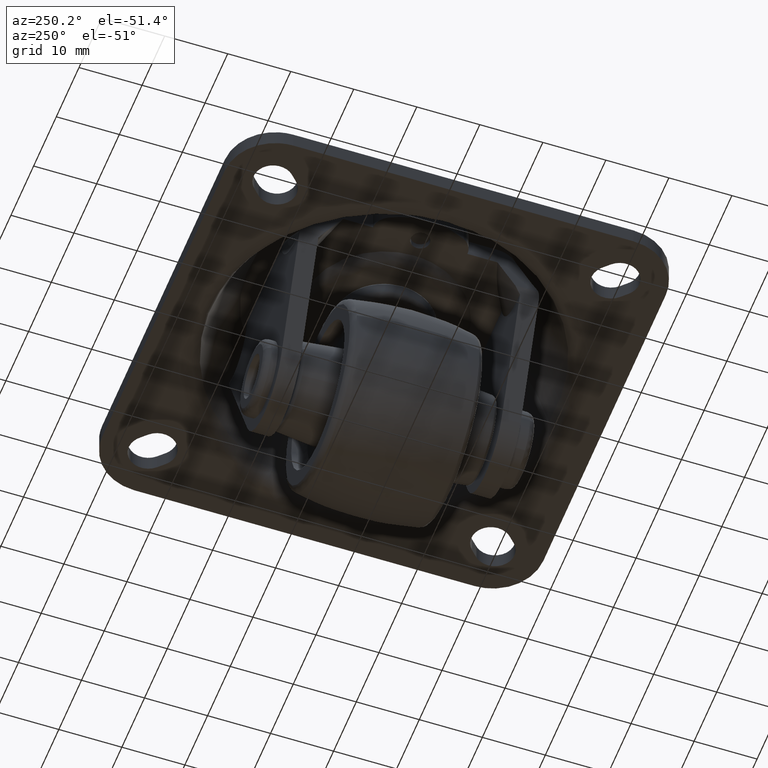
[diagram: clean part render]
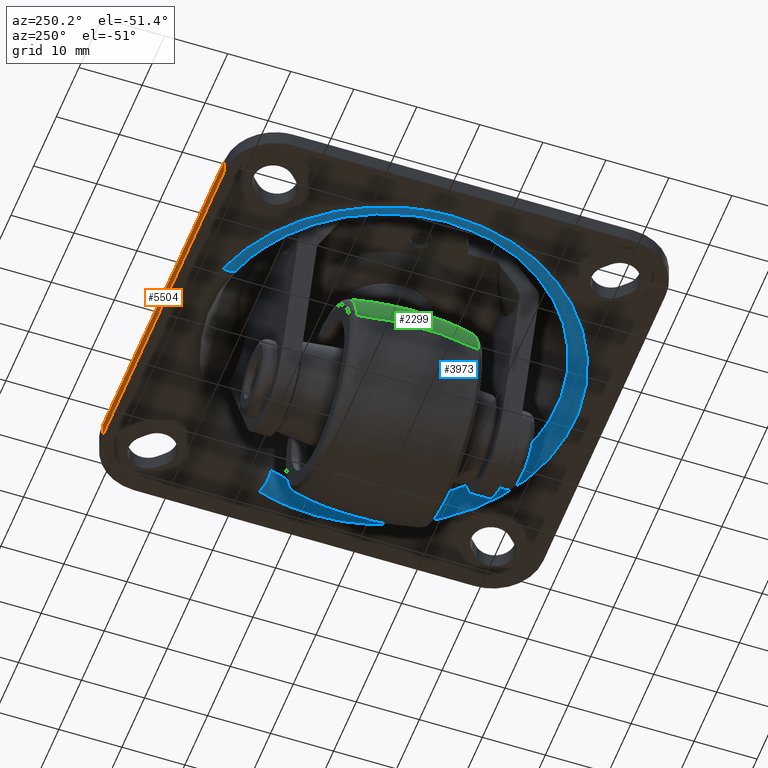
[diagram: same view with three faces highlighted in distinct colors, each labeled with its STEP entity id]
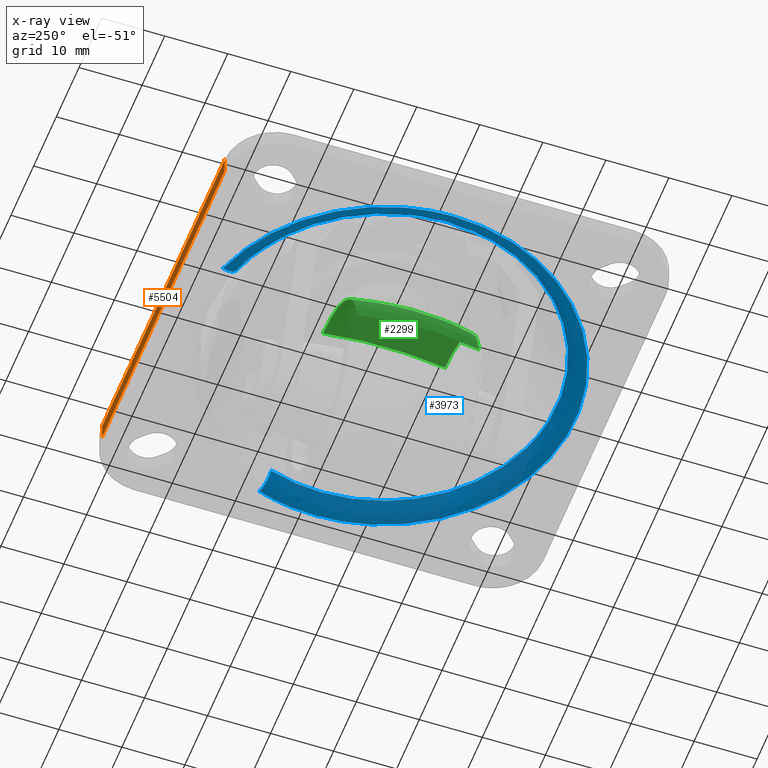
[diagram: x-ray of the same camera — body ghosted, the three highlighted faces saturated]
A machine part, auxiliary view with three faces highlighted in distinct colors.
The next image is the same camera in x-ray (body ghosted, the three faces saturated) — at least one of them is partly hidden behind the body in this view.
Their STEP definitions:

[orange] entity #5504 — the highlighted face is a freeform B-spline surface patch.
#5469=CARTESIAN_POINT('',(-29.697299895337519,35.0,11.270130591257660));
#5470=CARTESIAN_POINT('',(-29.697299895337519,35.0,14.129870036809660));
#5471=CARTESIAN_POINT('',(29.697301343730391,35.0,11.270130591257660));
#5472=CARTESIAN_POINT('',(29.697301343730391,35.0,14.129870036809660));
#5473=B_SPLINE_SURFACE_WITH_KNOTS('',1,1,((#5469,#5471),(#5470,#5472)),.UNSPECIFIED.,.F.,.F.,.U.,(2,2),(2,2),(0.0,2.859739445551996),(0.0,59.394601239067910),.UNSPECIFIED.);
#5474=CARTESIAN_POINT('',(27.0,35.0,14.000000000000121));
#5475=VERTEX_POINT('',#5474);
#5476=CARTESIAN_POINT('',(-27.0,35.0,14.000000000000121));
#5477=VERTEX_POINT('',#5476);
#5478=CARTESIAN_POINT('',(27.0,35.0,14.000000000000121));
#5479=CARTESIAN_POINT('',(-27.0,35.0,14.000000000000121));
#5480=QUASI_UNIFORM_CURVE('',1,(#5478,#5479),.UNSPECIFIED.,.F.,.U.);
#5481=EDGE_CURVE('',#5475,#5477,#5480,.T.);
#5482=ORIENTED_EDGE('',*,*,#5481,.F.);
#5483=CARTESIAN_POINT('',(27.0,35.0,11.400001000000040));
#5484=VERTEX_POINT('',#5483);
#5485=CARTESIAN_POINT('',(27.0,35.0,11.400001000000040));
#5486=CARTESIAN_POINT('',(27.0,35.0,14.000000000000121));
#5487=QUASI_UNIFORM_CURVE('',1,(#5485,#5486),.UNSPECIFIED.,.F.,.U.);
#5488=EDGE_CURVE('',#5484,#5475,#5487,.T.);
#5489=ORIENTED_EDGE('',*,*,#5488,.F.);
#5490=CARTESIAN_POINT('',(-27.0,35.0,11.400001000000040));
#5491=VERTEX_POINT('',#5490);
#5492=CARTESIAN_POINT('',(27.0,35.0,11.400001000000040));
#5493=CARTESIAN_POINT('',(-27.0,35.0,11.400001000000040));
#5494=QUASI_UNIFORM_CURVE('',1,(#5492,#5493),.UNSPECIFIED.,.F.,.U.);
#5495=EDGE_CURVE('',#5484,#5491,#5494,.T.);
#5496=ORIENTED_EDGE('',*,*,#5495,.T.);
#5497=CARTESIAN_POINT('',(-27.0,35.0,11.400001000000040));
#5498=CARTESIAN_POINT('',(-27.0,35.0,14.000000000000121));
#5499=QUASI_UNIFORM_CURVE('',1,(#5497,#5498),.UNSPECIFIED.,.F.,.U.);
#5500=EDGE_CURVE('',#5491,#5477,#5499,.T.);
#5501=ORIENTED_EDGE('',*,*,#5500,.T.);
#5502=EDGE_LOOP('',(#5482,#5489,#5496,#5501));
#5503=FACE_OUTER_BOUND('',#5502,.T.);
#5504=ADVANCED_FACE('',(#5503),#5473,.T.);

[blue] entity #3973 — the highlighted face is a freeform B-spline surface patch.
#3768=CARTESIAN_POINT('',(-8.502158808276462,26.166954194601690,13.532190310187010));
#3769=VERTEX_POINT('',#3768);
#3770=CARTESIAN_POINT('',(26.166954603978049,8.502158941288023,13.532189225029230));
#3771=VERTEX_POINT('',#3770);
#3787=CARTESIAN_POINT('',(-9.389576059104357,28.898143658007690,11.400001000000000));
#3788=VERTEX_POINT('',#3787);
#3789=CARTESIAN_POINT('',(-9.389576059104357,28.898143658007694,11.400000999999998));
#3790=CARTESIAN_POINT('',(-8.701266343297734,26.779744177344533,11.400001000744512));
#3791=CARTESIAN_POINT('',(-8.502158808276462,26.166954194601690,13.532190310187008));
#3799=(BOUNDED_CURVE()B_SPLINE_CURVE(2,(#3789,#3790,#3791),.UNSPECIFIED.,.F.,.U.)B_SPLINE_CURVE_WITH_KNOTS((3,3),(-1.677870963109787,-0.312822436384869),.UNSPECIFIED.)CURVE()GEOMETRIC_REPRESENTATION_ITEM()RATIONAL_B_SPLINE_CURVE((0.897261808168027,0.721372837541829,0.899676616401448))REPRESENTATION_ITEM(''));
#3800=EDGE_CURVE('',#3788,#3769,#3799,.T.);
#3802=CARTESIAN_POINT('',(28.898143658007690,9.389576059104355,11.400001000000000));
#3803=VERTEX_POINT('',#3802);
#3819=CARTESIAN_POINT('',(28.898143658007694,9.389576059104355,11.400001000000003));
#3820=CARTESIAN_POINT('',(26.779745035432317,8.701266622107351,11.400001000744505));
#3821=CARTESIAN_POINT('',(26.166954603978041,8.502158941288023,13.532189225029231));
#3829=(BOUNDED_CURVE()B_SPLINE_CURVE(2,(#3819,#3820,#3821),.UNSPECIFIED.,.F.,.U.)B_SPLINE_CURVE_WITH_KNOTS((3,3),(-1.677870963109788,-0.312822880926653),.UNSPECIFIED.)CURVE()GEOMETRIC_REPRESENTATION_ITEM()RATIONAL_B_SPLINE_CURVE((0.897261808168028,0.721372894821841,0.899676500268648))REPRESENTATION_ITEM(''));
#3830=EDGE_CURVE('',#3803,#3771,#3829,.T.);
#3835=CARTESIAN_POINT('',(29.066491365138376,9.444275544917158,11.405227717106426));
#3836=CARTESIAN_POINT('',(38.510766910055537,-19.622215820221225,11.405227717106429));
#3837=CARTESIAN_POINT('',(9.444275544917161,-29.066491365138376,11.405227717106426));
#3838=CARTESIAN_POINT('',(-19.622215820221211,-38.510766910055537,11.405227717106429));
#3839=CARTESIAN_POINT('',(-29.066491365138376,-9.444275544917163,11.405227717106426));
#3840=CARTESIAN_POINT('',(-38.510766910055537,19.622215820221211,11.405227717106429));
#3841=CARTESIAN_POINT('',(-9.444275544917165,29.066491365138376,11.405227717106426));
#3842=CARTESIAN_POINT('',(26.679037671830812,8.668544816117530,11.256851067553969));
#3843=CARTESIAN_POINT('',(35.347582487948337,-18.010492855713270,11.256851067553967));
#3844=CARTESIAN_POINT('',(8.668544816117533,-26.679037671830798,11.256851067553969));
#3845=CARTESIAN_POINT('',(-18.010492855713270,-35.347582487948337,11.256851067553967));
#3846=CARTESIAN_POINT('',(-26.679037671830798,-8.668544816117535,11.256851067553969));
#3847=CARTESIAN_POINT('',(-35.347582487948337,18.010492855713267,11.256851067553967));
#3848=CARTESIAN_POINT('',(-8.668544816117537,26.679037671830798,11.256851067553969));
#3849=CARTESIAN_POINT('',(26.123122336563185,8.487916974251162,13.702672126867467));
#3850=CARTESIAN_POINT('',(34.611039310814341,-17.635205362312018,13.702672126867464));
#3851=CARTESIAN_POINT('',(8.487916974251164,-26.123122336563185,13.702672126867467));
#3852=CARTESIAN_POINT('',(-17.635205362312018,-34.611039310814341,13.702672126867464));
#3853=CARTESIAN_POINT('',(-26.123122336563185,-8.487916974251167,13.702672126867467));
#3854=CARTESIAN_POINT('',(-34.611039310814341,17.635205362312018,13.702672126867464));
#3855=CARTESIAN_POINT('',(-8.487916974251167,26.123122336563185,13.702672126867467));
#3863=(BOUNDED_SURFACE()B_SPLINE_SURFACE(2,2,((#3835,#3842,#3849),(#3836,#3843,#3850),(#3837,#3844,#3851),(#3838,#3845,#3852),(#3839,#3846,#3853),(#3840,#3847,#3854),(#3841,#3848,#3855)),.UNSPECIFIED.,.F.,.F.,.U.)B_SPLINE_SURFACE_WITH_KNOTS((3,2,2,3),(3,3),(0.0,50.637305891942731,101.274611783885500,151.911917675828190),(0.0,4.364182913718580),.UNSPECIFIED.)GEOMETRIC_REPRESENTATION_ITEM()RATIONAL_B_SPLINE_SURFACE(((0.915716985851247,0.702796657538571,0.918373808248209),(0.647509690343122,0.496952282340764,0.649388347476423),(0.915716985851247,0.702796657538571,0.918373808248209),(0.647509690343122,0.496952282340764,0.649388347476423),(0.915716985851247,0.702796657538571,0.918373808248209),(0.647509690343122,0.496952282340764,0.649388347476423),(0.915716985851247,0.702796657538571,0.918373808248209)))REPRESENTATION_ITEM('')SURFACE());
#3864=CARTESIAN_POINT('',(-27.513563807933600,0.0,13.532190858490560));
#3865=VERTEX_POINT('',#3864);
#3866=CARTESIAN_POINT('',(-27.513563807933600,0.0,13.532190858490560));
#3867=CARTESIAN_POINT('',(-27.513563807933608,19.989774076179739,13.532190858490555));
#3868=CARTESIAN_POINT('',(-8.502158808276462,26.166954194601697,13.532190310187005));
#3876=(BOUNDED_CURVE()B_SPLINE_CURVE(2,(#3866,#3867,#3868),.UNSPECIFIED.,.F.,.U.)B_SPLINE_CURVE_WITH_KNOTS((3,3),(0.0,0.197450173559780),.UNSPECIFIED.)CURVE()GEOMETRIC_REPRESENTATION_ITEM()RATIONAL_B_SPLINE_CURVE((1.0,0.768672732443205,0.902750337912000))REPRESENTATION_ITEM(''));
#3877=EDGE_CURVE('',#3865,#3769,#3876,.T.);
#3878=ORIENTED_EDGE('',*,*,#3877,.F.);
#3879=CARTESIAN_POINT('',(3.176820787275425,-27.329542265933380,13.532198233315411));
#3880=VERTEX_POINT('',#3879);
#3881=CARTESIAN_POINT('',(3.176820787275425,-27.329542265933380,13.532198233315412));
#3882=CARTESIAN_POINT('',(1.593739988445724,-27.513561651335056,13.532198043110180));
#3883=CARTESIAN_POINT('',(-0.000000243232983,-27.513561715449800,13.532197829514530));
#3884=CARTESIAN_POINT('',(-27.513563922505391,-27.513562822295921,13.532194142102099));
#3885=CARTESIAN_POINT('',(-27.513563807933600,0.0,13.532190858490560));
#3893=(BOUNDED_CURVE()B_SPLINE_CURVE(2,(#3881,#3882,#3883,#3884,#3885),.UNSPECIFIED.,.F.,.U.)B_SPLINE_CURVE_WITH_KNOTS((3,2,3),(0.730000070538370,0.750000000000000,1.0),.UNSPECIFIED.)CURVE()GEOMETRIC_REPRESENTATION_ITEM()RATIONAL_B_SPLINE_CURVE((0.956886257027319,0.976568625135764,1.0,0.707106781186548,1.0))REPRESENTATION_ITEM(''));
#3894=EDGE_CURVE('',#3880,#3865,#3893,.T.);
#3895=ORIENTED_EDGE('',*,*,#3894,.F.);
#3896=CARTESIAN_POINT('',(27.513564314817941,0.0,13.532189181117239));
#3897=VERTEX_POINT('',#3896);
#3898=CARTESIAN_POINT('',(27.513564314817941,0.0,13.532189181117239));
#3899=CARTESIAN_POINT('',(27.513563932714568,-24.500609409933276,13.532193707216324));
#3900=CARTESIAN_POINT('',(3.176820787275425,-27.329542265933380,13.532198233315412));
#3908=(BOUNDED_CURVE()B_SPLINE_CURVE(2,(#3898,#3899,#3900),.UNSPECIFIED.,.F.,.U.)B_SPLINE_CURVE_WITH_KNOTS((3,3),(0.500000000000000,0.730000070538370),.UNSPECIFIED.)CURVE()GEOMETRIC_REPRESENTATION_ITEM()RATIONAL_B_SPLINE_CURVE((1.0,0.730538156050783,0.956886257027319))REPRESENTATION_ITEM(''));
#3909=EDGE_CURVE('',#3897,#3880,#3908,.T.);
#3910=ORIENTED_EDGE('',*,*,#3909,.F.);
#3911=CARTESIAN_POINT('',(26.166954603978045,8.502158941288023,13.532189225029228));
#3912=CARTESIAN_POINT('',(27.513564314817934,4.357720483393561,13.532189181117237));
#3913=CARTESIAN_POINT('',(27.513564314817941,0.0,13.532189181117239));
#3921=(BOUNDED_CURVE()B_SPLINE_CURVE(2,(#3911,#3912,#3913),.UNSPECIFIED.,.F.,.U.)B_SPLINE_CURVE_WITH_KNOTS((3,3),(0.447450173639567,0.500000000000000),.UNSPECIFIED.)CURVE()GEOMETRIC_REPRESENTATION_ITEM()RATIONAL_B_SPLINE_CURVE((0.902750338020358,0.938434048836818,1.0))REPRESENTATION_ITEM(''));
#3922=EDGE_CURVE('',#3771,#3897,#3921,.T.);
#3923=ORIENTED_EDGE('',*,*,#3922,.F.);
#3924=ORIENTED_EDGE('',*,*,#3830,.F.);
#3925=CARTESIAN_POINT('',(30.385306407522449,0.0,11.400001000000000));
#3926=VERTEX_POINT('',#3925);
#3927=CARTESIAN_POINT('',(30.385306407522449,0.0,11.400001000000000));
#3928=CARTESIAN_POINT('',(30.385306407522449,4.812559749493448,11.400001000000001));
#3929=CARTESIAN_POINT('',(28.898143658007697,9.389576059104355,11.400001000000001));
#3937=(BOUNDED_CURVE()B_SPLINE_CURVE(2,(#3927,#3928,#3929),.UNSPECIFIED.,.F.,.U.)B_SPLINE_CURVE_WITH_KNOTS((3,3),(0.500000000000000,0.552549825474382),.UNSPECIFIED.)CURVE()GEOMETRIC_REPRESENTATION_ITEM()RATIONAL_B_SPLINE_CURVE((1.0,0.938434049874893,0.902750339223696))REPRESENTATION_ITEM(''));
#3938=EDGE_CURVE('',#3926,#3803,#3937,.T.);
#3939=ORIENTED_EDGE('',*,*,#3938,.F.);
#3940=CARTESIAN_POINT('',(-30.385306407522449,0.0,11.400001000000000));
#3941=VERTEX_POINT('',#3940);
#3942=CARTESIAN_POINT('',(-30.385306407522449,0.0,11.400001000000000));
#3943=CARTESIAN_POINT('',(-30.385306407522449,-30.385306407522449,11.400001000000001));
#3944=CARTESIAN_POINT('',(0.0,-30.385306407522449,11.400001000000000));
#3945=CARTESIAN_POINT('',(30.385306407522449,-30.385306407522449,11.400001000000001));
#3946=CARTESIAN_POINT('',(30.385306407522449,0.0,11.400001000000000));
#3954=(BOUNDED_CURVE()B_SPLINE_CURVE(2,(#3942,#3943,#3944,#3945,#3946),.UNSPECIFIED.,.F.,.U.)B_SPLINE_CURVE_WITH_KNOTS((3,2,3),(0.0,0.250000000000000,0.500000000000000),.UNSPECIFIED.)CURVE()GEOMETRIC_REPRESENTATION_ITEM()RATIONAL_B_SPLINE_CURVE((1.0,0.707106781186548,1.0,0.707106781186548,1.0))REPRESENTATION_ITEM(''));
#3955=EDGE_CURVE('',#3941,#3926,#3954,.T.);
#3956=ORIENTED_EDGE('',*,*,#3955,.F.);
#3957=CARTESIAN_POINT('',(-9.389576059104359,28.898143658007690,11.400000999999996));
#3958=CARTESIAN_POINT('',(-30.385306407522446,22.076217331466772,11.400000999999998));
#3959=CARTESIAN_POINT('',(-30.385306407522449,0.0,11.400001000000000));
#3967=(BOUNDED_CURVE()B_SPLINE_CURVE(2,(#3957,#3958,#3959),.UNSPECIFIED.,.F.,.U.)B_SPLINE_CURVE_WITH_KNOTS((3,3),(0.802549825474381,1.0),.UNSPECIFIED.)CURVE()GEOMETRIC_REPRESENTATION_ITEM()RATIONAL_B_SPLINE_CURVE((0.902750339223698,0.768672731311654,1.0))REPRESENTATION_ITEM(''));
#3968=EDGE_CURVE('',#3788,#3941,#3967,.T.);
#3969=ORIENTED_EDGE('',*,*,#3968,.F.);
#3970=ORIENTED_EDGE('',*,*,#3800,.T.);
#3971=EDGE_LOOP('',(#3878,#3895,#3910,#3923,#3924,#3939,#3956,#3969,#3970));
#3972=FACE_OUTER_BOUND('',#3971,.T.);
#3973=ADVANCED_FACE('',(#3972),#3863,.T.);

[green] entity #2299 — the highlighted face is a freeform B-spline surface patch.
#1771=CARTESIAN_POINT('',(-14.709139187257589,9.693875973830586,3.190975029548146));
#1772=VERTEX_POINT('',#1771);
#1786=CARTESIAN_POINT('',(0.0,9.693868358175926,15.051280629905630));
#1787=VERTEX_POINT('',#1786);
#1788=CARTESIAN_POINT('',(0.0,9.693868358175926,15.051280629905630));
#1789=CARTESIAN_POINT('',(-12.136182378743404,9.693872004651063,15.051280002700169));
#1790=CARTESIAN_POINT('',(-14.709139187257586,9.693875973830586,3.190975029548146));
#1798=(BOUNDED_CURVE()B_SPLINE_CURVE(2,(#1788,#1789,#1790),.UNSPECIFIED.,.F.,.U.)B_SPLINE_CURVE_WITH_KNOTS((3,3),(0.500000000000000,0.713703259591169),.UNSPECIFIED.)CURVE()GEOMETRIC_REPRESENTATION_ITEM()RATIONAL_B_SPLINE_CURVE((1.0,0.749631057709663,0.927299387962033))REPRESENTATION_ITEM(''));
#1799=EDGE_CURVE('',#1787,#1772,#1798,.T.);
#1888=CARTESIAN_POINT('',(-14.950616368937460,9.693876412423959,1.737865754510866));
#1889=VERTEX_POINT('',#1888);
#1905=CARTESIAN_POINT('',(-14.709139187257591,9.693875973830586,3.190975029548146));
#1906=CARTESIAN_POINT('',(-14.865473579381161,9.693876190861916,2.470335688741114));
#1907=CARTESIAN_POINT('',(-14.950616368937460,9.693876412423959,1.737865754510866));
#1915=(BOUNDED_CURVE()B_SPLINE_CURVE(2,(#1905,#1906,#1907),.UNSPECIFIED.,.F.,.U.)B_SPLINE_CURVE_WITH_KNOTS((3,3),(0.713703259591168,0.730000170187717),.UNSPECIFIED.)CURVE()GEOMETRIC_REPRESENTATION_ITEM()RATIONAL_B_SPLINE_CURVE((0.927299387962031,0.940848291705943,0.956886453161616))REPRESENTATION_ITEM(''));
#1916=EDGE_CURVE('',#1772,#1889,#1915,.T.);
#2118=CARTESIAN_POINT('',(0.0,-9.693870160658822,15.051280273685320));
#2119=VERTEX_POINT('',#2118);
#2133=CARTESIAN_POINT('',(-14.950617186147880,-9.693872348291809,1.737865680361707));
#2134=VERTEX_POINT('',#2133);
#2135=CARTESIAN_POINT('',(0.0,-9.693870160658822,15.051280273685320));
#2136=CARTESIAN_POINT('',(-13.403056782724418,-9.693871254475315,15.051279730658809));
#2137=CARTESIAN_POINT('',(-14.950617186147886,-9.693872348291809,1.737865680361707));
#2145=(BOUNDED_CURVE()B_SPLINE_CURVE(2,(#2135,#2136,#2137),.UNSPECIFIED.,.F.,.U.)B_SPLINE_CURVE_WITH_KNOTS((3,3),(0.500000000000000,0.730000172075923),.UNSPECIFIED.)CURVE()GEOMETRIC_REPRESENTATION_ITEM()RATIONAL_B_SPLINE_CURVE((1.0,0.730538037092139,0.956886456878071))REPRESENTATION_ITEM(''));
#2146=EDGE_CURVE('',#2119,#2134,#2145,.T.);
#2222=CARTESIAN_POINT('',(0.0,-9.693870160658822,15.051280273685327));
#2223=CARTESIAN_POINT('',(0.0,-4.893358950503560,15.999992000000008));
#2224=CARTESIAN_POINT('',(0.0,0.0,15.999992000000010));
#2225=CARTESIAN_POINT('',(0.0,4.893358023031919,15.999992000000008));
#2226=CARTESIAN_POINT('',(0.0,9.693868358175926,15.051280629905628));
#2234=(BOUNDED_CURVE()B_SPLINE_CURVE(2,(#2222,#2223,#2224,#2225,#2226),.UNSPECIFIED.,.F.,.U.)B_SPLINE_CURVE_WITH_KNOTS((3,2,3),(0.380114794169089,0.500000000000000,0.619885183563095),.UNSPECIFIED.)CURVE()GEOMETRIC_REPRESENTATION_ITEM()RATIONAL_B_SPLINE_CURVE((0.969564673296984,0.979982805740602,1.0,0.979982809458652,0.969564677167171))REPRESENTATION_ITEM(''));
#2235=EDGE_CURVE('',#2119,#1787,#2234,.T.);
#2241=CARTESIAN_POINT('',(-14.950617186147886,-9.693872348291809,1.737865680361707));
#2242=CARTESIAN_POINT('',(-15.892984010388627,-4.893360076154890,1.847408039935868));
#2243=CARTESIAN_POINT('',(-15.892984005492455,4.529773E-014,1.847408082057504));
#2244=CARTESIAN_POINT('',(-15.892984000596289,4.893362167363237,1.847408124179157));
#2245=CARTESIAN_POINT('',(-14.950616368937460,9.693876412423959,1.737865754510866));
#2253=(BOUNDED_CURVE()B_SPLINE_CURVE(2,(#2241,#2242,#2243,#2244,#2245),.UNSPECIFIED.,.F.,.U.)B_SPLINE_CURVE_WITH_KNOTS((3,2,3),(0.380114767143109,0.500000000000000,0.619885283065045),.UNSPECIFIED.)CURVE()GEOMETRIC_REPRESENTATION_ITEM()RATIONAL_B_SPLINE_CURVE((0.927762972071296,0.937731938560749,0.956886118190660,0.937731930538944,0.927762963721255))REPRESENTATION_ITEM(''));
#2254=EDGE_CURVE('',#2134,#1889,#2253,.T.);
#2259=CARTESIAN_POINT('',(0.096344783861070,-10.662370873286127,14.849903436567622));
#2260=CARTESIAN_POINT('',(0.103806448826881,-5.393212152814225,15.999992000000013));
#2261=CARTESIAN_POINT('',(0.103806448826881,0.0,15.999992000000002));
#2262=CARTESIAN_POINT('',(0.103806448826881,5.393213399185308,15.999992000000011));
#2263=CARTESIAN_POINT('',(0.096344780451953,10.662373280681475,14.849902911110279));
#2264=CARTESIAN_POINT('',(0.048237207738550,-10.662370873286127,14.849903436567629));
#2265=CARTESIAN_POINT('',(0.051973060045306,-5.393212152814225,15.999992000000008));
#2266=CARTESIAN_POINT('',(0.051973060045306,0.0,15.999992000000013));
#2267=CARTESIAN_POINT('',(0.051973060045306,5.393213399185307,15.999992000000015));
#2268=CARTESIAN_POINT('',(0.048237206031698,10.662373280681473,14.849902911110279));
#2269=CARTESIAN_POINT('',(-13.223719330311779,-10.662370873286129,14.849903436567628));
#2270=CARTESIAN_POINT('',(-14.247863651264293,-5.393212152814226,15.999992000000010));
#2271=CARTESIAN_POINT('',(-14.247863651264302,0.0,15.999992000000013));
#2272=CARTESIAN_POINT('',(-14.247863651264304,5.393213399185308,15.999992000000010));
#2273=CARTESIAN_POINT('',(-13.223718862396373,10.662373280681479,14.849902911110290));
#2274=CARTESIAN_POINT('',(-14.756408340103262,-10.662370873286129,1.664539961345569));
#2275=CARTESIAN_POINT('',(-15.899255630012947,-5.393212152814225,1.793454769835207));
#2276=CARTESIAN_POINT('',(-15.899255630012943,0.0,1.793454769835207));
#2277=CARTESIAN_POINT('',(-15.899255630012943,5.393213399185306,1.793454769835207));
#2278=CARTESIAN_POINT('',(-14.756407817954338,10.662373280681475,1.664539902446423));
#2279=CARTESIAN_POINT('',(-14.762217046236856,-10.662370873286127,1.614569027122861));
#2280=CARTESIAN_POINT('',(-15.905514206054560,-5.393212152814225,1.739613710482153));
#2281=CARTESIAN_POINT('',(-15.905514206054558,0.0,1.739613710482153));
#2282=CARTESIAN_POINT('',(-15.905514206054560,5.393213399185306,1.739613710482153));
#2283=CARTESIAN_POINT('',(-14.762216523882392,10.662373280681475,1.614568969991915));
#2291=(BOUNDED_SURFACE()B_SPLINE_SURFACE(2,2,((#2259,#2264,#2269,#2274,#2279),(#2260,#2265,#2270,#2275,#2280),(#2261,#2266,#2271,#2276,#2281),(#2262,#2267,#2272,#2277,#2282),(#2263,#2268,#2273,#2278,#2283)),.UNSPECIFIED.,.F.,.F.,.U.)B_SPLINE_SURFACE_WITH_KNOTS((3,2,3),(3,1,1,3),(0.0,10.902408353204590,21.804819170482592),(0.0,0.121810774465525,24.483947985426610,24.605776986572561),.UNSPECIFIED.)GEOMETRIC_REPRESENTATION_ITEM()RATIONAL_B_SPLINE_SURFACE(((0.970186180794214,0.968882552243121,0.706853402709111,0.926958052170916,0.928053264007071),(0.980618374591824,0.979300728416120,0.714454038370119,0.936925423623873,0.938032412026578),(1.002694619568849,1.001347309784424,0.730538238691624,0.958018027753113,0.959149937315565),(0.980618369602331,0.979300723433331,0.714454034734899,0.936925418856695,0.938032407253767),(0.970186176078616,0.968882547533859,0.706853399273444,0.926958047665429,0.928053259496260)))REPRESENTATION_ITEM('')SURFACE());
#2292=ORIENTED_EDGE('',*,*,#1799,.T.);
#2293=ORIENTED_EDGE('',*,*,#1916,.T.);
#2294=ORIENTED_EDGE('',*,*,#2254,.F.);
#2295=ORIENTED_EDGE('',*,*,#2146,.F.);
#2296=ORIENTED_EDGE('',*,*,#2235,.T.);
#2297=EDGE_LOOP('',(#2292,#2293,#2294,#2295,#2296));
#2298=FACE_OUTER_BOUND('',#2297,.T.);
#2299=ADVANCED_FACE('',(#2298),#2291,.T.);